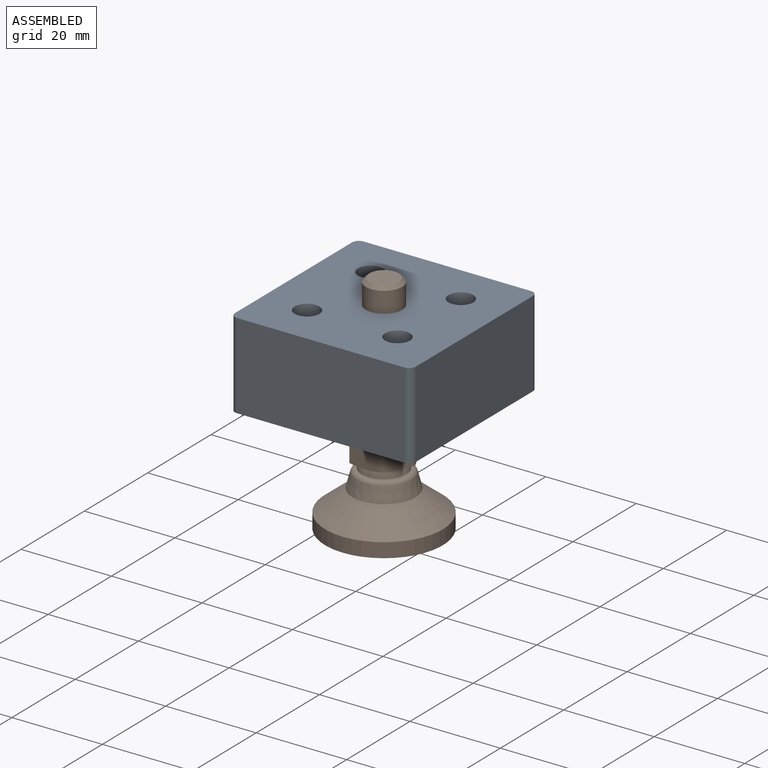
[diagram: assembled view]
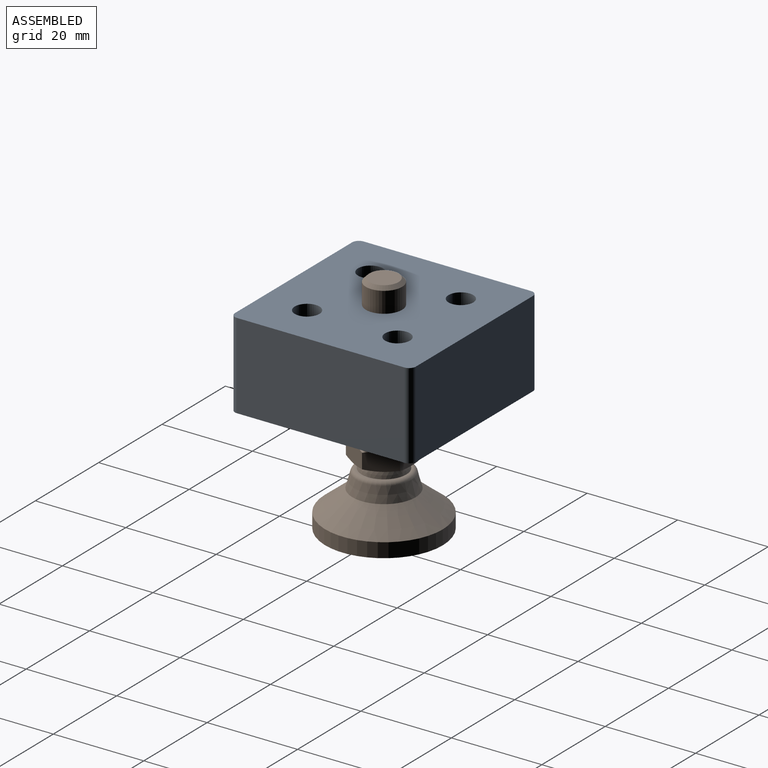
[diagram: assembled view, second angle]
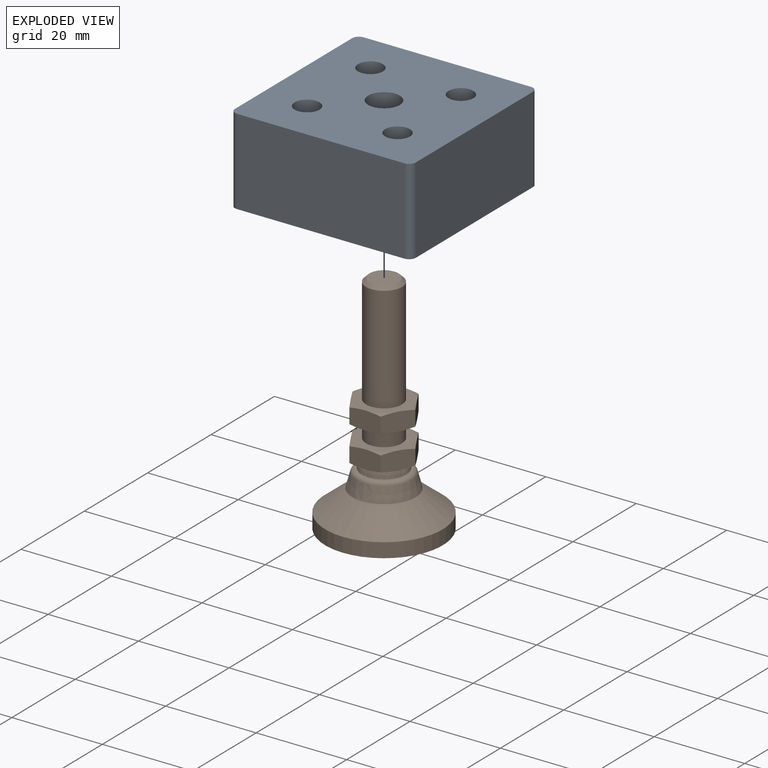
[diagram: exploded view]
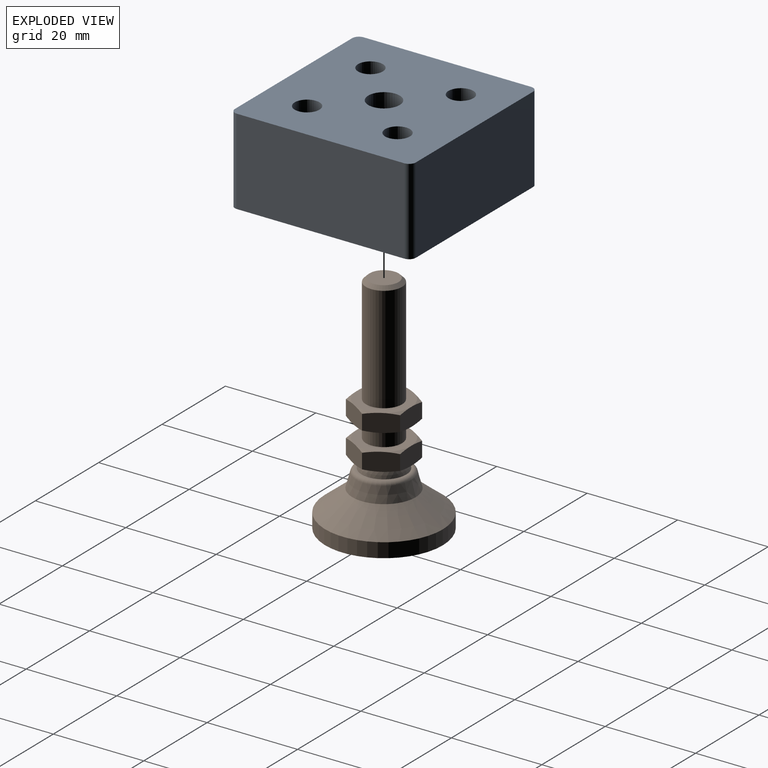
[diagram: exploded view, second angle]
ASSEMBLY  parts=2 mates=2
PART A: 15 faces, bbox 40x40x19.1 mm
  f0: plane 37x19.05mm, normal (0,-1,0), area 704.9mm2, adj f4,f5,f11,f14
  f1: plane 37x19.05mm, normal (1,0,0), area 704.9mm2, adj f4,f5,f11,f12
  f2: plane 37x19.05mm, normal (0,1,0), area 704.9mm2, adj f4,f5,f12,f13
  f3: plane 37x19.05mm, normal (-1,0,0), area 704.9mm2, adj f4,f5,f13,f14
  f4: plane 40x40mm, normal (0,0,1), area 1464.6mm2, adj f0,f1,f2,f3,f6,f7,f8,f9
  f5: plane 40x40mm, normal (0,0,-1), area 1464.6mm2, adj f0,f1,f2,f3,f6,f7,f8,f9
  f6: cylinder r=2.75mm len=19.05mm, axis (0,0,1), area 329.2mm2, adj f4,f5
  f7: cylinder r=2.75mm len=19.05mm, axis (0,0,1), area 329.2mm2, adj f4,f5
  f8: cylinder r=2.75mm len=19.05mm, axis (0,0,1), area 329.2mm2, adj f4,f5
  f9: cylinder r=2.75mm len=19.05mm, axis (0,0,1), area 329.2mm2, adj f4,f5
  f10: cylinder r=3.5mm len=19.05mm, axis (0,0,1), area 418.9mm2, adj f4,f5
  f11: cylinder r=1.5mm len=19.05mm, axis (0,0,1), area 44.9mm2, adj f0,f1,f4,f5
  f12: cylinder r=1.5mm len=19.05mm, axis (0,0,-1), area 44.9mm2, adj f1,f2,f4,f5
  f13: cylinder r=1.5mm len=19.05mm, axis (0,0,1), area 44.9mm2, adj f2,f3,f4,f5
  f14: cylinder r=1.5mm len=19.05mm, axis (0,0,-1), area 44.9mm2, adj f0,f3,f4,f5
PART B: 59 faces, bbox 26.5x26.5x50.5 mm
  f0: cylinder r=4mm len=8mm, axis (0,0,1), area 47.4mm2, adj f1,f2,f34
  f1: cylinder r=4mm len=8mm, axis (0,0,1), area 47.4mm2, adj f0,f2,f34
  f2: plane 12x12mm, normal (0,0,1), area 62.8mm2, adj f0,f1,f3,f5,f7,f9,f11,f13
  f3: cone r=6mm half-angle=70deg, axis (0,0,-1), area 3.3mm2, adj f2,f4,f14
  f4: plane 6.53x4.53mm, normal (0.87,-0.5,0), area 26.1mm2, adj f3,f5,f6,f14,f15,f20
  f5: cone r=6mm half-angle=70deg, axis (0,0,-1), area 3.3mm2, adj f2,f4,f6
  f6: plane 6.53x4.53mm, normal (0.87,0.5,0), area 26.1mm2, adj f4,f5,f7,f8,f20,f21
  f7: cone r=6mm half-angle=70deg, axis (0,0,-1), area 3.3mm2, adj f2,f6,f8
  f8: plane 7.46x4.53mm, normal (0,1,0), area 26.1mm2, adj f6,f7,f9,f10,f17,f21
  f9: cone r=6mm half-angle=70deg, axis (0,0,-1), area 3.3mm2, adj f2,f8,f10
  f10: plane 6.53x4.53mm, normal (-0.87,0.5,0), area 26.1mm2, adj f8,f9,f11,f12,f17,f18
  f11: cone r=6mm half-angle=70deg, axis (0,0,-1), area 3.3mm2, adj f2,f10,f12
  f12: plane 6.53x4.53mm, normal (-0.87,-0.5,0), area 26.1mm2, adj f10,f11,f13,f14,f18,f19
  f13: cone r=6mm half-angle=70deg, axis (0,0,-1), area 3.3mm2, adj f2,f12,f14
  f14: plane 7.46x4.53mm, normal (0,-1,0), area 26.1mm2, adj f3,f4,f12,f13,f15,f19
  f15: cone r=7.2mm half-angle=70deg, axis (0,0,1), area 3.3mm2, adj f4,f14,f16
  f16: plane 12x12mm, normal (0,0,-1), area 58mm2, adj f15,f17,f18,f19,f20,f21,f22,f23
  f17: cone r=7.2mm half-angle=70deg, axis (0,0,1), area 3.3mm2, adj f8,f10,f16
  f18: cone r=7.2mm half-angle=70deg, axis (0,0,1), area 3.3mm2, adj f10,f12,f16
  f19: cone r=7.2mm half-angle=70deg, axis (0,0,1), area 3.3mm2, adj f12,f14,f16
  f20: cone r=7.2mm half-angle=70deg, axis (0,0,1), area 3.3mm2, adj f4,f6,f16
  f21: cone r=7.2mm half-angle=70deg, axis (0,0,1), area 3.3mm2, adj f6,f8,f16
  f22: sphere r=5mm, area 31.4mm2, adj f16,f23,f24
  f23: sphere r=5mm, area 31.4mm2, adj f16,f22,f24
  f24: plane 10.33x10.33mm, normal (0,0,1), area 6.9mm2, adj f22,f23,f25,f26
  f25: torus R=5.16mm, axis (0,0,-1), area 23.6mm2, adj f24,f26,f28
  f26: torus R=5.16mm, axis (0,0,-1), area 23.6mm2, adj f24,f25,f27
  f27: cone r=6.13mm half-angle=15deg, axis (0,0,-1), area 69.6mm2, adj f26,f28,f30
  f28: cone r=6.13mm half-angle=15deg, axis (0,0,-1), area 69.6mm2, adj f25,f27,f29
  f29: cone r=7mm half-angle=51.3deg, axis (0,0,-1), area 241.6mm2, adj f28,f30,f32
  f30: cone r=7mm half-angle=51.3deg, axis (0,0,-1), area 241.6mm2, adj f27,f29,f31
  f31: cylinder r=13mm len=26mm, axis (0,0,1), area 130.2mm2, adj f30,f32,f33
  f32: cylinder r=13mm len=26mm, axis (0,0,1), area 130.2mm2, adj f29,f31,f33
  f33: plane 26x26mm, normal (0,0,-1), area 530.9mm2, adj f31,f32
  f34: plane 12x12mm, normal (0,0,-1), area 62.8mm2, adj f0,f1,f35,f50,f51,f56,f57,f58
  f35: cone r=7.2mm half-angle=70deg, axis (0,0,1), area 3.3mm2, adj f34,f36,f54
  f36: plane 7.46x4.53mm, normal (0,1,0), area 26.1mm2, adj f35,f37,f38,f54,f55,f58
  f37: cone r=6mm half-angle=70deg, axis (0,0,-1), area 3.3mm2, adj f36,f38,f42
  f38: plane 6.53x4.53mm, normal (0.87,0.5,0), area 26.1mm2, adj f36,f37,f39,f40,f57,f58
  f39: cone r=6mm half-angle=70deg, axis (0,0,-1), area 3.3mm2, adj f38,f40,f42
  f40: plane 6.53x4.53mm, normal (0.87,-0.5,0), area 26.1mm2, adj f38,f39,f41,f49,f50,f57
  f41: cone r=6mm half-angle=70deg, axis (0,0,-1), area 3.3mm2, adj f40,f42,f49
  f42: plane 12x12mm, normal (0,0,1), area 62.8mm2, adj f37,f39,f41,f43,f44,f48,f53,f55
  f43: cylinder r=4mm len=23.46mm, axis (0,0,1), area 294.9mm2, adj f42,f44,f46
  f44: cylinder r=4mm len=23.46mm, axis (0,0,1), area 294.9mm2, adj f42,f43,f45
  f45: cone r=3.23mm half-angle=45deg, axis (0,0,-1), area 12.3mm2, adj f44,f46,f47
  f46: cone r=3.23mm half-angle=45deg, axis (0,0,-1), area 12.3mm2, adj f43,f45,f47
  f47: plane 6.47x6.47mm, normal (0,0,1), area 32.8mm2, adj f45,f46
  f48: cone r=6mm half-angle=70deg, axis (0,0,-1), area 3.3mm2, adj f42,f49,f52
  f49: plane 7.46x4.53mm, normal (0,-1,0), area 26.1mm2, adj f40,f41,f48,f50,f51,f52
  f50: cone r=7.2mm half-angle=70deg, axis (0,0,1), area 3.3mm2, adj f34,f40,f49
  f51: cone r=7.2mm half-angle=70deg, axis (0,0,1), area 3.3mm2, adj f34,f49,f52
  f52: plane 6.53x4.53mm, normal (-0.87,-0.5,0), area 26.1mm2, adj f48,f49,f51,f53,f54,f56
  f53: cone r=6mm half-angle=70deg, axis (0,0,-1), area 3.3mm2, adj f42,f52,f54
  f54: plane 6.53x4.53mm, normal (-0.87,0.5,0), area 26.1mm2, adj f35,f36,f52,f53,f55,f56
  f55: cone r=6mm half-angle=70deg, axis (0,0,-1), area 3.3mm2, adj f36,f42,f54
  f56: cone r=7.2mm half-angle=70deg, axis (0,0,1), area 3.3mm2, adj f34,f52,f54
  f57: cone r=7.2mm half-angle=70deg, axis (0,0,1), area 3.3mm2, adj f34,f38,f40
  f58: cone r=7.2mm half-angle=70deg, axis (0,0,1), area 3.3mm2, adj f34,f36,f38
PLACE A t=(-35.65,-5.84,-22.2)mm
PLACE B t=(-35.65,-5.84,-47.8)mm
MATE planar A.f10 <-> B.f0  axis (0,0,-1) through (-35.65,-5.84,-22.2)mm
MATE cylindrical A.f10 <-> B.f0  axis (0,0,1) through (-35.65,-5.84,-12.68)mm
